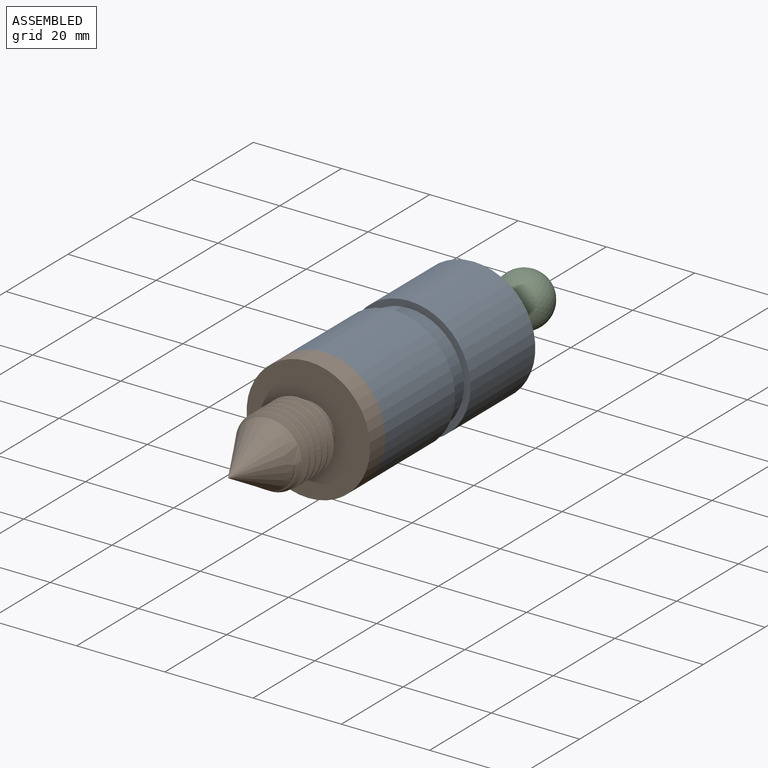
[diagram: assembled view]
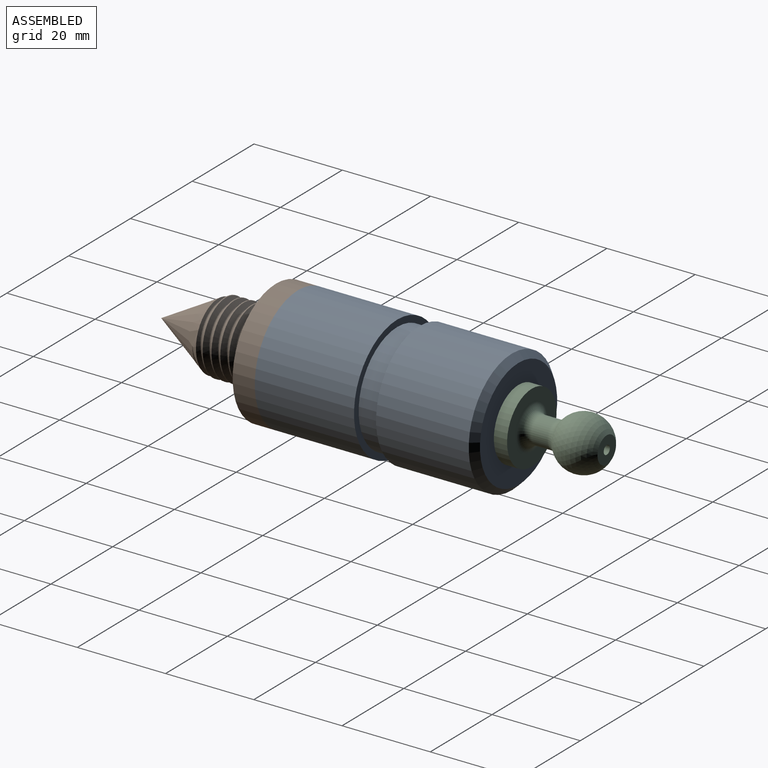
[diagram: assembled view, second angle]
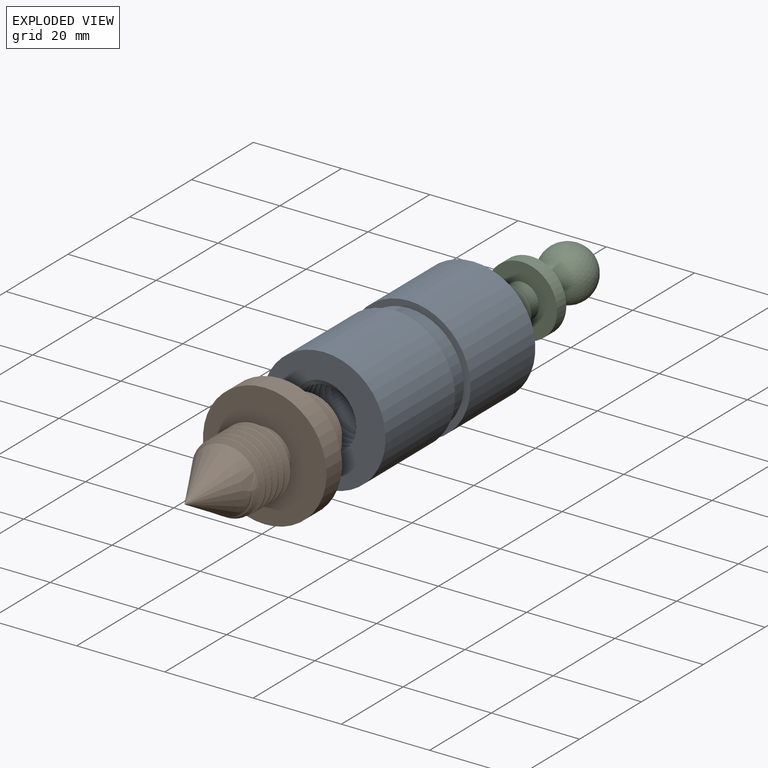
[diagram: exploded view]
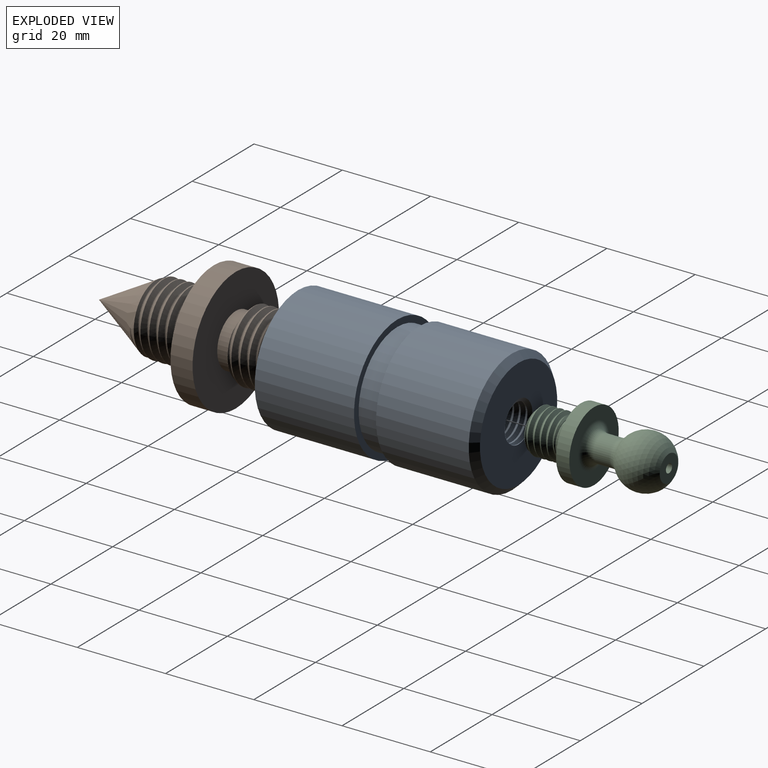
[diagram: exploded view, second angle]
ASSEMBLY  parts=3 mates=2
PART A: 36 faces, bbox 28.6x52.1x28.6 mm
  f0: plane 28.59x28.59mm, normal (0,-1,0), area 443.3mm2, adj f2,f4,f10,f32,f33,f34
  f1: plane 25.43x25.43mm, normal (0,1,0), area 425.6mm2, adj f12,f22,f27,f29,f30,f31
  f2: cylinder r=14mm len=28mm, axis (0,-1,0), area 1979.2mm2, adj f0,f26
  f3: cylinder r=6.92mm len=18.25mm, axis (0,-1,0), area 749.8mm2, adj f9,f11,f33,f35
  f4: cylinder r=6.92mm len=13.84mm, axis (0,-1,0), area 21mm2, adj f0,f5,f10,f33,f34
  f5: cylinder r=6.92mm len=13.84mm, axis (0,-1,0), area 21.8mm2, adj f4,f6,f33,f34
  f6: cylinder r=6.92mm len=13.84mm, axis (0,-1,0), area 21.7mm2, adj f5,f7,f33,f34
  f7: cylinder r=6.92mm len=13.84mm, axis (0,-1,0), area 21.7mm2, adj f6,f8,f33,f34
  f8: cylinder r=6.92mm len=13.84mm, axis (0,-1,0), area 21.7mm2, adj f7,f9,f33,f34
  f9: cylinder r=6.92mm len=13.84mm, axis (0,-1,0), area 21.8mm2, adj f3,f8,f33,f34
  f10: cylinder r=6.92mm len=4.85mm, axis (0,-1,0), area 0.7mm2, adj f0,f4,f34
  f11: plane 13.84x13.84mm, normal (0,-1,0), area 95.2mm2, adj f3,f21
  f12: cylinder r=4.19mm len=8.38mm, axis (0,-1,0), area 9.5mm2, adj f1,f13,f22,f29,f31
  f13: cylinder r=4.19mm len=8.38mm, axis (0,-1,0), area 9.9mm2, adj f12,f14,f29,f31
  f14: cylinder r=4.19mm len=8.38mm, axis (0,-1,0), area 9.9mm2, adj f13,f15,f29,f31
  f15: cylinder r=4.19mm len=8.38mm, axis (0,-1,0), area 9.9mm2, adj f14,f16,f29,f31
  f16: cylinder r=4.19mm len=8.38mm, axis (0,-1,0), area 9.9mm2, adj f15,f17,f29,f31
  f17: cylinder r=4.19mm len=8.38mm, axis (0,-1,0), area 9.9mm2, adj f16,f18,f29,f31
  f18: cylinder r=4.19mm len=8.38mm, axis (0,-1,0), area 9.9mm2, adj f17,f19,f29,f31
  f19: cylinder r=4.19mm len=8.38mm, axis (0,-1,0), area 9.9mm2, adj f18,f20,f29,f31
  f20: cylinder r=4.19mm len=8.38mm, axis (0,-1,0), area 9.9mm2, adj f19,f21,f29,f31
  f21: cylinder r=4.19mm len=8.38mm, axis (0,-1,0), area 156.2mm2, adj f11,f20,f28,f29
  f22: cylinder r=4.19mm len=2.93mm, axis (0,-1,0), area 0.3mm2, adj f1,f12,f31
  f23: cylinder r=14mm len=28mm, axis (0,-1,0), area 1847.3mm2, adj f24,f27
  f24: plane 28x28mm, normal (0,-1,0), area 124.9mm2, adj f23,f25
  f25: cylinder r=12.5mm len=25mm, axis (0,-1,0), area 392.7mm2, adj f24,f26
  f26: plane 28x28mm, normal (0,1,0), area 124.9mm2, adj f2,f25
  f27: cone r=14mm half-angle=45deg, axis (0,-1,0), area 176.6mm2, adj f1,f23
  f28: plane 1.13x0.87mm, normal (-1,0,0), area 0.5mm2, adj f21,f29,f30,f31
  f29: bspline ~15.47x11.55mm, area 263.4mm2, adj f1,f12,f13,f14,f15,f16,f17,f18
  f30: bspline ~14.69x11.73mm, area 68.1mm2, adj f1,f28,f29,f31
  f31: bspline ~14.72x11.55mm, area 251.5mm2, adj f1,f12,f13,f14,f15,f16,f17,f18
  f32: bspline ~18.73x16.22mm, area 99.6mm2, adj f0,f33,f34,f35
  f33: bspline ~18.48x16mm, area 395.1mm2, adj f0,f3,f4,f5,f6,f7,f8,f9
  f34: bspline ~18.48x16mm, area 368.3mm2, adj f0,f4,f5,f6,f7,f8,f9,f10
  f35: plane 1.51x1.17mm, normal (1,0,0), area 1mm2, adj f3,f32,f33,f34
PART B: 21 faces, bbox 28.6x42.4x28.6 mm
  f0: plane 14.12x14.12mm, normal (0,-1,0), area 39.8mm2, adj f4,f12,f13,f14,f15
  f1: cone r=0mm half-angle=30deg, axis (0,1,0), area 343.7mm2, adj f10,f17,f18,f19,f20
  f2: plane 14.13x13.91mm, normal (0,1,0), area 151.9mm2, adj f11,f13,f14,f16
  f3: cylinder r=8mm len=16mm, axis (0,1,0), area 31.5mm2, adj f11,f14,f15,f16
  f4: cylinder r=6mm len=12mm, axis (0,1,0), area 113.1mm2, adj f0,f5
  f5: plane 28x28mm, normal (0,1,0), area 502.7mm2, adj f4,f6
  f6: cylinder r=14mm len=28mm, axis (0,1,0), area 439.8mm2, adj f5,f7
  f7: plane 28x28mm, normal (0,-1,0), area 502.7mm2, adj f6,f8
  f8: cylinder r=6mm len=12mm, axis (0,1,0), area 113.1mm2, adj f7,f9
  f9: plane 15.37x15.32mm, normal (0,1,0), area 58mm2, adj f8,f10,f18,f19,f20
  f10: cylinder r=8mm len=16mm, axis (0,1,0), area 137.8mm2, adj f1,f9,f19,f20
  f11: bspline ~18.48x16mm, area 174.1mm2, adj f2,f3,f12,f13,f15,f16
  f12: plane 0.95x0.73mm, normal (1,0,0), area 0.2mm2, adj f0,f11,f13,f15
  f13: bspline ~15.98x13.84mm, area 90.1mm2, adj f0,f2,f11,f12,f14
  f14: bspline ~18.48x16mm, area 177.3mm2, adj f0,f2,f3,f13,f15,f16
  f15: cone r=8mm half-angle=45deg, axis (0,1,0), area 30.6mm2, adj f0,f3,f11,f12,f14
  f16: cone r=7mm half-angle=45deg, axis (0,-1,0), area 27.3mm2, adj f2,f3,f11,f14
  f17: plane 0.46x0.3mm, normal (0,0,-1), area 0mm2, adj f1,f18,f19
  f18: bspline ~15.98x13.84mm, area 143.5mm2, adj f1,f9,f17,f19,f20
  f19: bspline ~18.48x16mm, area 294.3mm2, adj f1,f9,f10,f17,f18
  f20: bspline ~18.48x16mm, area 177.8mm2, adj f1,f9,f10,f18
PART C: 21 faces, bbox 16x30.4x16 mm
  f0: cylinder r=5mm len=10mm, axis (0,-1,0), area 19.8mm2, adj f15,f17,f18,f20
  f1: plane 8x8mm, normal (0,-1,0), area 22mm2, adj f2,f17
  f2: cylinder r=3mm len=6mm, axis (0,-1,0), area 56.5mm2, adj f1,f3
  f3: plane 6x6mm, normal (0,-1,0), area 25.1mm2, adj f2,f4
  f4: cylinder r=1mm len=27mm, axis (0,-1,0), area 169.6mm2, adj f3,f5
  f5: plane 6x6mm, normal (0,1,0), area 25.1mm2, adj f4,f6
  f6: sphere r=6mm, area 372.5mm2, adj f5,f13
  f7: cylinder r=3mm len=6mm, axis (0,-1,0), area 67.1mm2, adj f13,f14
  f8: plane 16x16mm, normal (0,1,0), area 122.5mm2, adj f9,f14
  f9: cylinder r=8mm len=16mm, axis (0,-1,0), area 150.8mm2, adj f8,f10
  f10: plane 16x16mm, normal (0,-1,0), area 153.3mm2, adj f9,f11
  f11: cylinder r=3.9mm len=7.8mm, axis (0,-1,0), area 73.5mm2, adj f10,f12
  f12: plane 8x8mm, normal (0,1,0), area 2.5mm2, adj f11,f16
  f13: torus R=5mm, axis (0,1,0), area 36.7mm2, adj f6,f7
  f14: torus R=5mm, axis (0,1,0), area 73.6mm2, adj f7,f8
  f15: cone r=5mm half-angle=45deg, axis (0,-1,0), area 3.7mm2, adj f0,f16,f18,f20
  f16: cone r=5mm half-angle=45deg, axis (0,-1,0), area 17mm2, adj f12,f15,f19,f20
  f17: cone r=4mm half-angle=45deg, axis (0,1,0), area 20.4mm2, adj f0,f1,f18,f19,f20
  f18: bspline ~11.55x10mm, area 104.6mm2, adj f0,f15,f17,f19
  f19: bspline ~9.67x8.38mm, area 52.8mm2, adj f16,f17,f18,f20
  f20: bspline ~11.55x10mm, area 104.5mm2, adj f0,f15,f16,f17,f19
PLACE A at identity fixed
PLACE B t=(0,-31,0)mm
PLACE C t=(0,40,0)mm
MATE cylindrical A.f2 <-> C.f0  axis (0,1,0) through (0,50,0)mm
MATE cylindrical A.f2 <-> B.f16  axis (0,-1,0) through (0,0,0)mm
